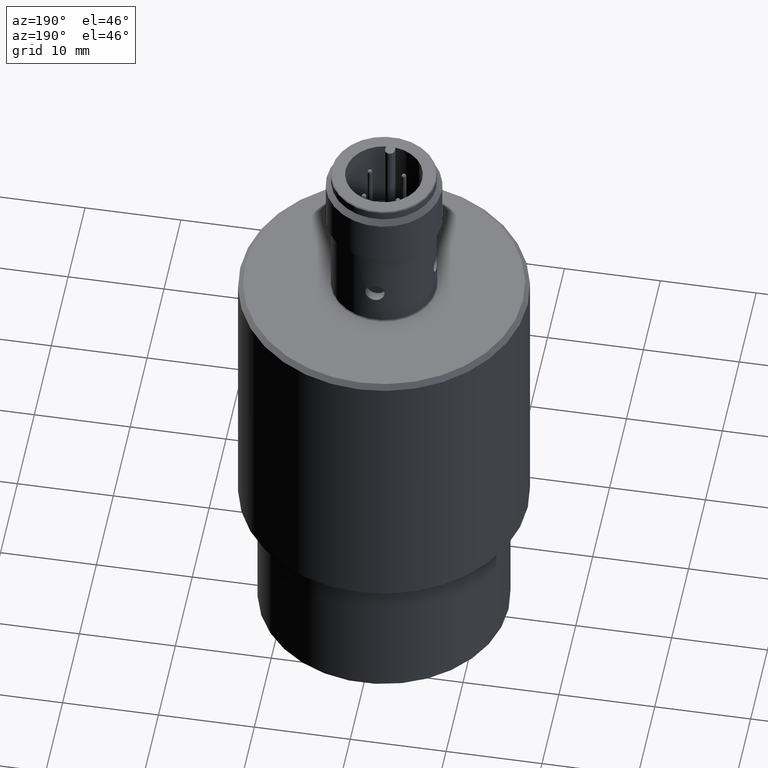
[diagram: clean part render]
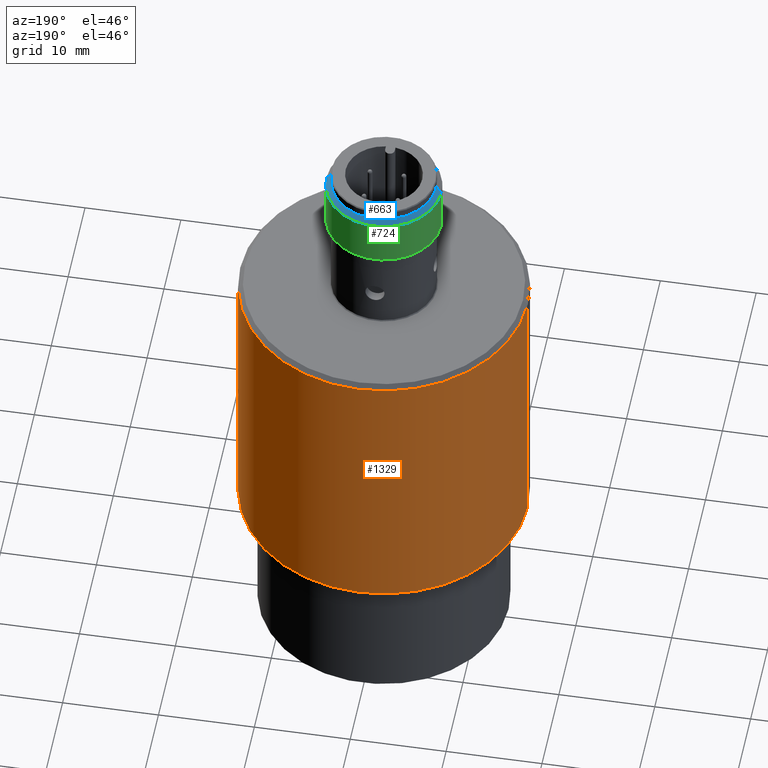
[diagram: same view with three faces highlighted in distinct colors, each labeled with its STEP entity id]
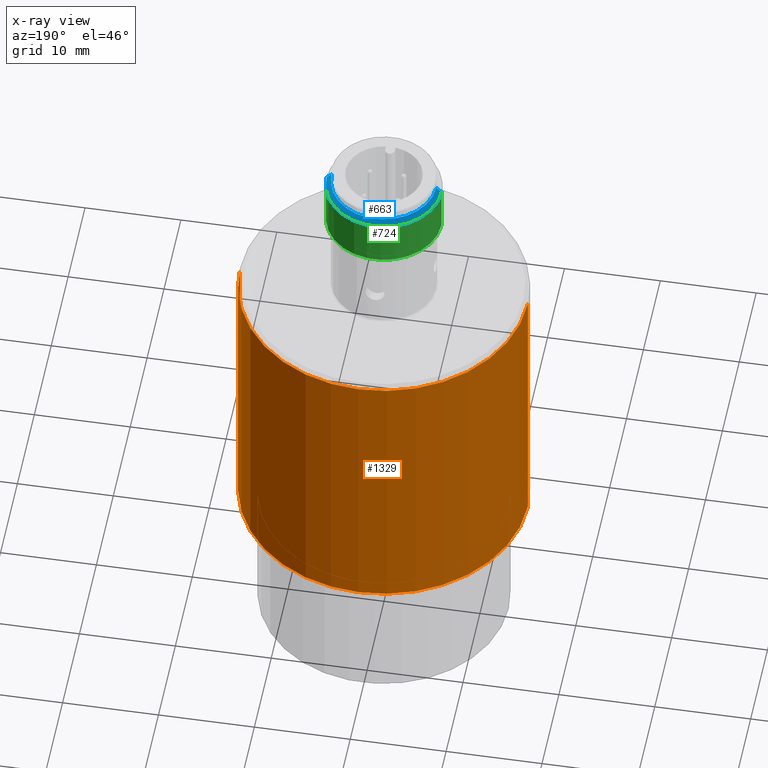
[diagram: x-ray of the same camera — body ghosted, the three highlighted faces saturated]
A machine part, auxiliary view with three faces highlighted in distinct colors.
The next image is the same camera in x-ray (body ghosted, the three faces saturated) — at least one of them is partly hidden behind the body in this view.
Their STEP definitions:

[orange] entity #1329 — the highlighted cylindrical surface (partial cylindrical patch) has radius 15 mm, axis along (0, 0, -1).
#1258=CARTESIAN_POINT('POINT662',(1.5E+001,2.78597945494591E-015,
   4.55E+001));
#1259=VERTEX_POINT('VERTEX662',#1258);
#1266=CARTESIAN_POINT('POINT663',(-1.5E+001,-1.83690953073357E-015,
   4.55E+001));
#1267=VERTEX_POINT('VERTEX663',#1266);
#1268=CARTESIAN_POINT('POS1031',(0.0E+000,0.0E+000,4.55E+001));
#1269=DIRECTION('DIR1527',(0.0E+000,0.0E+000,-1.0E+000));
#1270=DIRECTION('DIR1528',(1.0E+000,0.0E+000,0.0E+000));
#1271=AXIS2_PLACEMENT_3D('AXIS497',#1268,#1269,#1270);
#1272=CIRCLE('ELLIPSE237',#1271,1.5E+001);
#1273=EDGE_CURVE('EDGE1020',#1267,#1259,#1272,.T.);
#1298=CARTESIAN_POINT('POINT664',(1.5E+001,9.49069924212342E-016,
   1.55E+001));
#1299=VERTEX_POINT('VERTEX664',#1298);
#1300=CARTESIAN_POINT('POS1034',(1.5E+001,1.83690953073357E-015,
   3.05E+001));
#1301=DIRECTION('DIR1532',(0.0E+000,0.0E+000,-1.0E+000));
#1302=VECTOR('VEC536',#1301,1.0E+000);
#1303=LINE('STRAIGHT536',#1300,#1302);
#1304=EDGE_CURVE('EDGE1023',#1259,#1299,#1303,.T.);
#1305=ORIENTED_EDGE('COEDGE2043',*,*,#1304,.T.);
#1306=CARTESIAN_POINT('POINT665',(-1.5E+001,-1.83690953073357E-015,
   1.55E+001));
#1307=VERTEX_POINT('VERTEX665',#1306);
#1308=CARTESIAN_POINT('POS1035',(0.0E+000,0.0E+000,1.55E+001));
#1309=DIRECTION('DIR1533',(0.0E+000,0.0E+000,-1.0E+000));
#1310=DIRECTION('DIR1534',(1.0E+000,0.0E+000,0.0E+000));
#1311=AXIS2_PLACEMENT_3D('AXIS499',#1308,#1309,#1310);
#1312=CIRCLE('ELLIPSE238',#1311,1.5E+001);
#1313=EDGE_CURVE('EDGE1024',#1307,#1299,#1312,.T.);
#1314=ORIENTED_EDGE('COEDGE2044',*,*,#1313,.F.);
#1315=CARTESIAN_POINT('POS1036',(-1.5E+001,-1.83690953073357E-015,
   3.05E+001));
#1316=DIRECTION('DIR1535',(0.0E+000,0.0E+000,1.0E+000));
#1317=VECTOR('VEC537',#1316,1.0E+000);
#1318=LINE('STRAIGHT537',#1315,#1317);
#1319=EDGE_CURVE('EDGE1025',#1307,#1267,#1318,.T.);
#1320=ORIENTED_EDGE('COEDGE2045',*,*,#1319,.T.);
#1321=ORIENTED_EDGE('COEDGE2046',*,*,#1273,.T.);
#1322=EDGE_LOOP('NONE',(#1305,#1314,#1320,#1321));
#1323=FACE_BOUND('LOOP1',#1322,.T.);
#1324=CARTESIAN_POINT('POS1037',(0.0E+000,0.0E+000,3.05E+001));
#1325=DIRECTION('DIR1536',(0.0E+000,0.0E+000,-1.0E+000));
#1326=DIRECTION('DIR1537',(1.0E+000,0.0E+000,0.0E+000));
#1327=AXIS2_PLACEMENT_3D('AXIS500',#1324,#1325,#1326);
#1328=CYLINDRICAL_SURFACE('CONE_SURF93',#1327,1.5E+001);
#1329=ADVANCED_FACE('FACE394',(#1323),#1328,.T.);

[blue] entity #663 — the highlighted conical surface has half-angle 45 deg.
#592=CARTESIAN_POINT('POINT632',(5.4585E+000,3.67381906146713E-016,
   6.1E+001));
#593=VERTEX_POINT('VERTEX632',#592);
#600=CARTESIAN_POINT('POINT633',(-5.4585E+000,-6.68451378233945E-016,
   6.1E+001));
#601=VERTEX_POINT('VERTEX633',#600);
#602=CARTESIAN_POINT('POS984',(0.0E+000,0.0E+000,6.1E+001));
#603=DIRECTION('DIR1455',(0.0E+000,0.0E+000,1.0E+000));
#604=DIRECTION('DIR1456',(1.0E+000,0.0E+000,0.0E+000));
#605=AXIS2_PLACEMENT_3D('AXIS472',#602,#603,#604);
#606=CIRCLE('ELLIPSE226',#605,5.4585E+000);
#607=EDGE_CURVE('EDGE968',#593,#601,#606,.T.);
#632=CARTESIAN_POINT('POINT634',(6.0E+000,3.34225689116972E-016,
   6.04585E+001));
#633=VERTEX_POINT('VERTEX634',#632);
#634=CARTESIAN_POINT('POS987',(5.72925E+000,7.01607595263686E-016,
   6.072925E+001));
#635=DIRECTION('DIR1460',(7.07106781186548E-001,8.65927457071936E-017,
   -7.07106781186548E-001));
#636=VECTOR('VEC514',#635,1.0E+000);
#637=LINE('STRAIGHT514',#634,#636);
#638=EDGE_CURVE('EDGE971',#593,#633,#637,.T.);
#639=ORIENTED_EDGE('COEDGE1939',*,*,#638,.T.);
#640=CARTESIAN_POINT('POINT635',(-6.0E+000,-7.34763812293426E-016,
   6.04585E+001));
#641=VERTEX_POINT('VERTEX635',#640);
#642=CARTESIAN_POINT('POS988',(0.0E+000,0.0E+000,6.04585E+001));
#643=DIRECTION('DIR1461',(0.0E+000,0.0E+000,-1.0E+000));
#644=DIRECTION('DIR1462',(1.0E+000,0.0E+000,0.0E+000));
#645=AXIS2_PLACEMENT_3D('AXIS474',#642,#643,#644);
#646=CIRCLE('ELLIPSE227',#645,6.0E+000);
#647=EDGE_CURVE('EDGE972',#641,#633,#646,.T.);
#648=ORIENTED_EDGE('COEDGE1940',*,*,#647,.F.);
#649=CARTESIAN_POINT('POS989',(-5.72925E+000,-7.01607595263686E-016,
   6.072925E+001));
#650=DIRECTION('DIR1463',(7.07106781186548E-001,8.65927457071936E-017,
   7.07106781186548E-001));
#651=VECTOR('VEC515',#650,1.0E+000);
#652=LINE('STRAIGHT515',#649,#651);
#653=EDGE_CURVE('EDGE973',#641,#601,#652,.T.);
#654=ORIENTED_EDGE('COEDGE1941',*,*,#653,.T.);
#655=ORIENTED_EDGE('COEDGE1942',*,*,#607,.F.);
#656=EDGE_LOOP('NONE',(#639,#648,#654,#655));
#657=FACE_BOUND('LOOP1',#656,.T.);
#658=CARTESIAN_POINT('POS990',(0.0E+000,0.0E+000,6.072925E+001));
#659=DIRECTION('DIR1464',(0.0E+000,0.0E+000,-1.0E+000));
#660=DIRECTION('DIR1465',(1.0E+000,0.0E+000,0.0E+000));
#661=AXIS2_PLACEMENT_3D('AXIS475',#658,#659,#660);
#662=CONICAL_SURFACE('CONE_SURF84',#661,5.72925E+000,
   7.85398163397448E-001);
#663=ADVANCED_FACE('FACE369',(#657),#662,.T.);

[green] entity #724 — the highlighted cylindrical surface (partial cylindrical patch) has radius 6 mm, axis along (0, 0, -1).
#632=CARTESIAN_POINT('POINT634',(6.0E+000,3.34225689116972E-016,
   6.04585E+001));
#633=VERTEX_POINT('VERTEX634',#632);
#640=CARTESIAN_POINT('POINT635',(-6.0E+000,-7.34763812293426E-016,
   6.04585E+001));
#641=VERTEX_POINT('VERTEX635',#640);
#642=CARTESIAN_POINT('POS988',(0.0E+000,0.0E+000,6.04585E+001));
#643=DIRECTION('DIR1461',(0.0E+000,0.0E+000,-1.0E+000));
#644=DIRECTION('DIR1462',(1.0E+000,0.0E+000,0.0E+000));
#645=AXIS2_PLACEMENT_3D('AXIS474',#642,#643,#644);
#646=CIRCLE('ELLIPSE227',#645,6.0E+000);
#647=EDGE_CURVE('EDGE972',#641,#633,#646,.T.);
#693=CARTESIAN_POINT('POINT638',(6.0E+000,3.31562170297409E-017,
   5.55415E+001));
#694=VERTEX_POINT('VERTEX638',#693);
#695=CARTESIAN_POINT('POS993',(6.0E+000,7.34763812293426E-016,5.8E+001))
   ;
#696=DIRECTION('DIR1470',(0.0E+000,0.0E+000,-1.0E+000));
#697=VECTOR('VEC516',#696,1.0E+000);
#698=LINE('STRAIGHT516',#695,#697);
#699=EDGE_CURVE('EDGE977',#633,#694,#698,.T.);
#700=ORIENTED_EDGE('COEDGE1949',*,*,#699,.T.);
#701=CARTESIAN_POINT('POINT639',(-6.0E+000,-7.34763812293426E-016,
   5.55415E+001));
#702=VERTEX_POINT('VERTEX639',#701);
#703=CARTESIAN_POINT('POS994',(0.0E+000,0.0E+000,5.55415E+001));
#704=DIRECTION('DIR1471',(0.0E+000,0.0E+000,-1.0E+000));
#705=DIRECTION('DIR1472',(1.0E+000,0.0E+000,0.0E+000));
#706=AXIS2_PLACEMENT_3D('AXIS478',#703,#704,#705);
#707=CIRCLE('ELLIPSE229',#706,6.0E+000);
#708=EDGE_CURVE('EDGE978',#702,#694,#707,.T.);
#709=ORIENTED_EDGE('COEDGE1950',*,*,#708,.F.);
#710=CARTESIAN_POINT('POS995',(-6.0E+000,-7.34763812293426E-016,5.8E+001
   ));
#711=DIRECTION('DIR1473',(0.0E+000,0.0E+000,1.0E+000));
#712=VECTOR('VEC517',#711,1.0E+000);
#713=LINE('STRAIGHT517',#710,#712);
#714=EDGE_CURVE('EDGE979',#702,#641,#713,.T.);
#715=ORIENTED_EDGE('COEDGE1951',*,*,#714,.T.);
#716=ORIENTED_EDGE('COEDGE1952',*,*,#647,.T.);
#717=EDGE_LOOP('NONE',(#700,#709,#715,#716));
#718=FACE_BOUND('LOOP1',#717,.T.);
#719=CARTESIAN_POINT('POS996',(0.0E+000,0.0E+000,5.8E+001));
#720=DIRECTION('DIR1474',(0.0E+000,0.0E+000,-1.0E+000));
#721=DIRECTION('DIR1475',(1.0E+000,0.0E+000,0.0E+000));
#722=AXIS2_PLACEMENT_3D('AXIS479',#719,#720,#721);
#723=CYLINDRICAL_SURFACE('CONE_SURF85',#722,6.0E+000);
#724=ADVANCED_FACE('FACE372',(#718),#723,.T.);